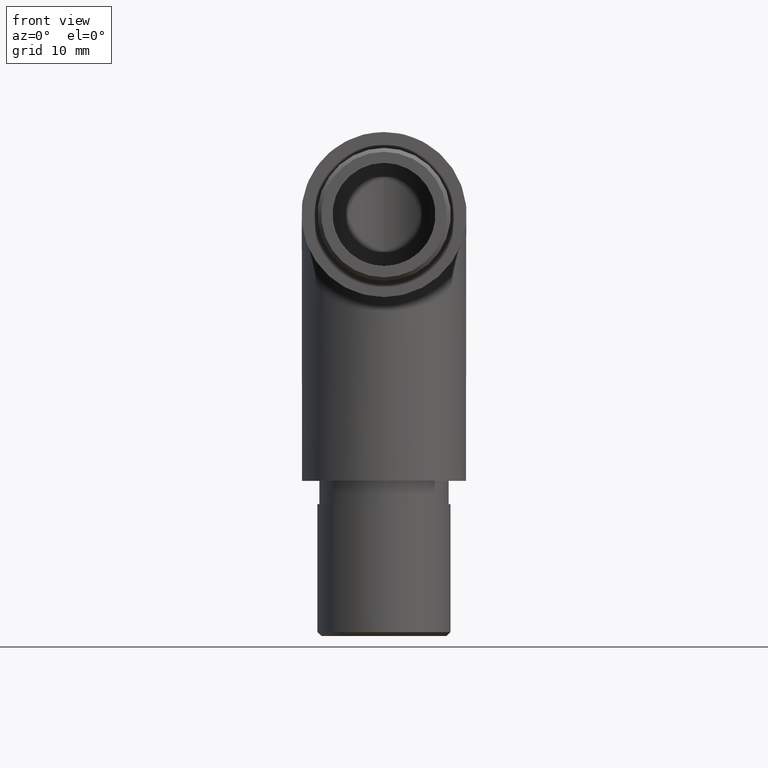
[diagram: clean part render]
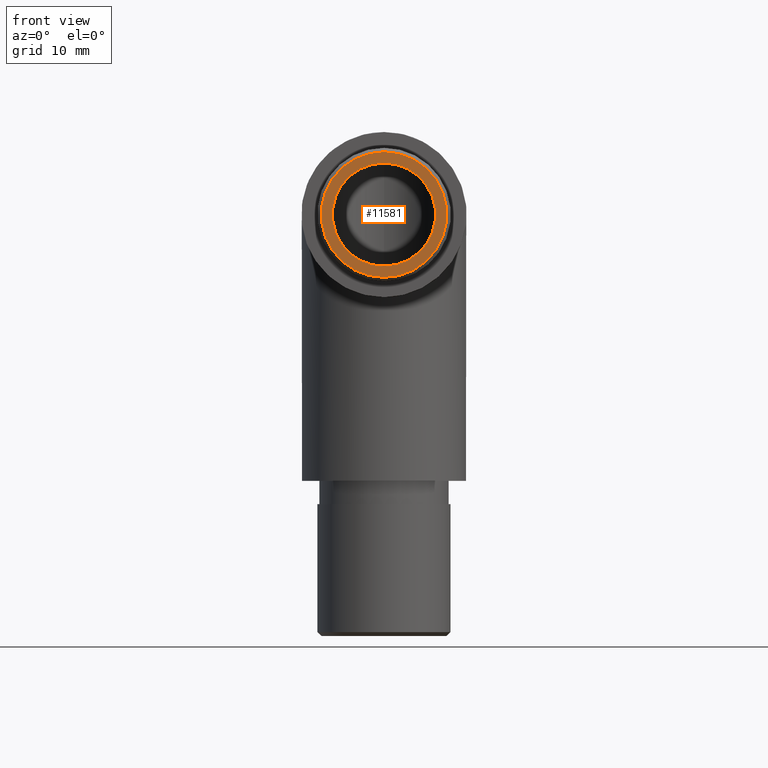
[diagram: same view with one face highlighted and labeled with its STEP entity id]
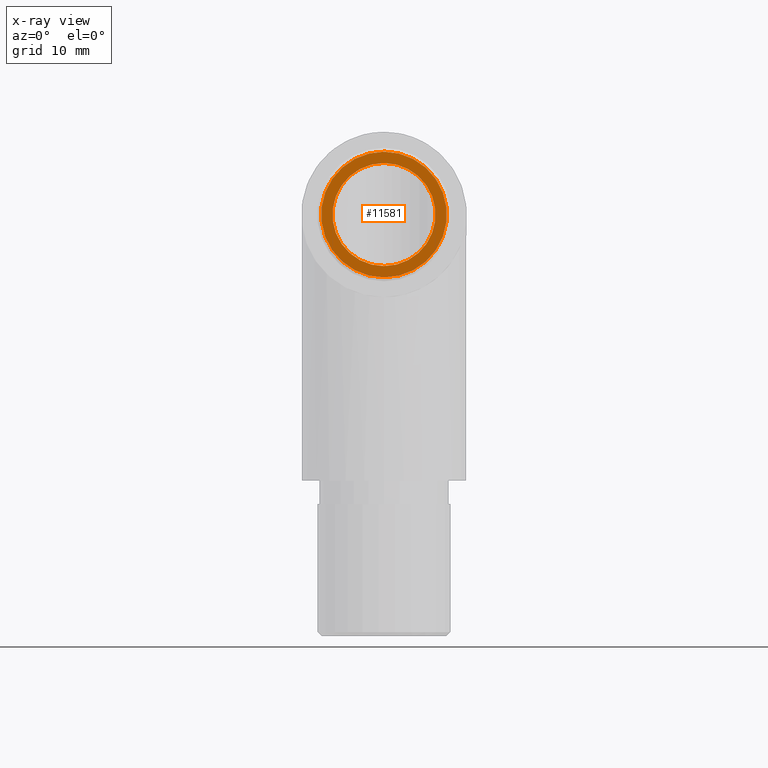
[diagram: x-ray of the same camera — body ghosted, the highlighted face saturated]
A machine part, front view. The second image highlights one B-rep face of the part: STEP entity #11581.
The next image is the same camera in x-ray: the body ghosted, the highlighted face saturated — about 0% of this face is hidden behind the body in this view.
In plain terms, the highlighted planar face has unit normal (0, -1, 0).
Its self-contained STEP definition (entity closure, byte-faithful):
#167 = ORIENTED_EDGE ( 'NONE', *, *, #8746, .F. ) ;
#601 = ORIENTED_EDGE ( 'NONE', *, *, #11049, .T. ) ;
#1389 = CIRCLE ( 'NONE', #8100, 8.099999999999981900 ) ;
#2655 = DIRECTION ( 'NONE',  ( 0.0000000000000000000, -0.0000000000000000000, -1.000000000000000000 ) ) ;
#2847 = DIRECTION ( 'NONE',  ( 0.0000000000000000000, -1.000000000000000000, 0.0000000000000000000 ) ) ;
#3290 = FACE_OUTER_BOUND ( 'NONE', #7805, .T. ) ;
#3413 = DIRECTION ( 'NONE',  ( 0.0000000000000000000, -1.000000000000000000, 0.0000000000000000000 ) ) ;
#4698 = VERTEX_POINT ( 'NONE', #6791 ) ;
#5339 = EDGE_LOOP ( 'NONE', ( #167 ) ) ;
#6434 = CARTESIAN_POINT ( 'NONE',  ( 0.0000000000000000000, -20.00000000000000000, 0.0000000000000000000 ) ) ;
#6652 = CIRCLE ( 'NONE', #11820, 6.650000000000000400 ) ;
#6791 = CARTESIAN_POINT ( 'NONE',  ( 0.0000000000000000000, -20.00000000000000000, -8.099999999999981900 ) ) ;
#6854 = DIRECTION ( 'NONE',  ( 0.0000000000000000000, 0.0000000000000000000, -1.000000000000000000 ) ) ;
#7655 = AXIS2_PLACEMENT_3D ( 'NONE', #8828, #12900, #2655 ) ;
#7688 = PLANE ( 'NONE',  #7655 ) ;
#7805 = EDGE_LOOP ( 'NONE', ( #601 ) ) ;
#8100 = AXIS2_PLACEMENT_3D ( 'NONE', #6434, #3413, #10472 ) ;
#8746 = EDGE_CURVE ( 'NONE', #8995, #8995, #6652, .T. ) ;
#8828 = CARTESIAN_POINT ( 'NONE',  ( 0.0000000000000000000, -20.00000000000000000, 0.0000000000000000000 ) ) ;
#8995 = VERTEX_POINT ( 'NONE', #9810 ) ;
#9810 = CARTESIAN_POINT ( 'NONE',  ( 0.0000000000000000000, -20.00000000000000000, -6.650000000000000400 ) ) ;
#10146 = FACE_BOUND ( 'NONE', #5339, .T. ) ;
#10472 = DIRECTION ( 'NONE',  ( 0.0000000000000000000, 0.0000000000000000000, -1.000000000000000000 ) ) ;
#11049 = EDGE_CURVE ( 'NONE', #4698, #4698, #1389, .T. ) ;
#11581 = ADVANCED_FACE ( 'NONE', ( #3290, #10146 ), #7688, .T. ) ;
#11820 = AXIS2_PLACEMENT_3D ( 'NONE', #13045, #2847, #6854 ) ;
#12900 = DIRECTION ( 'NONE',  ( 0.0000000000000000000, -1.000000000000000000, 0.0000000000000000000 ) ) ;
#13045 = CARTESIAN_POINT ( 'NONE',  ( 0.0000000000000000000, -20.00000000000000000, 0.0000000000000000000 ) ) ;